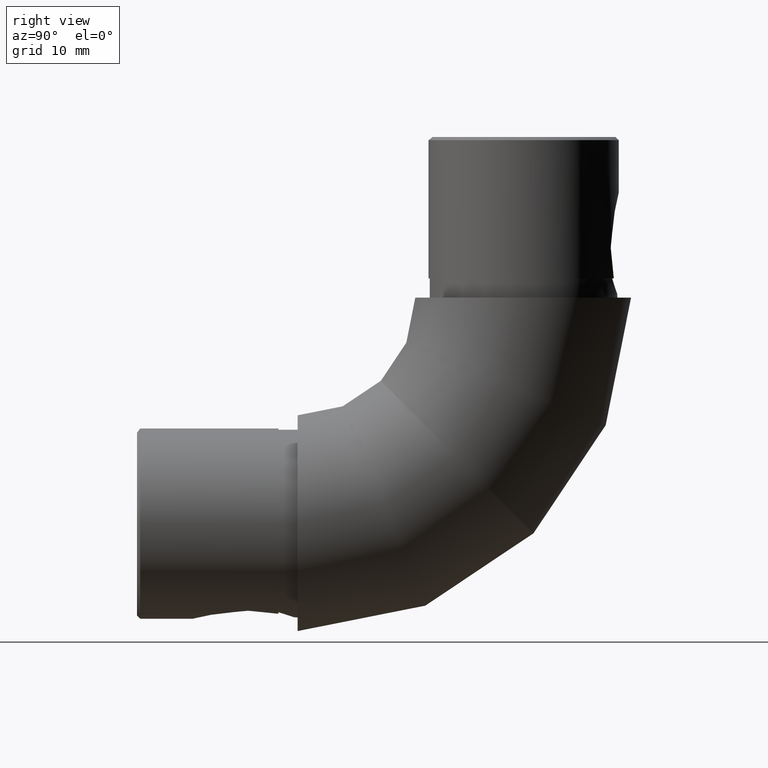
[diagram: clean part render]
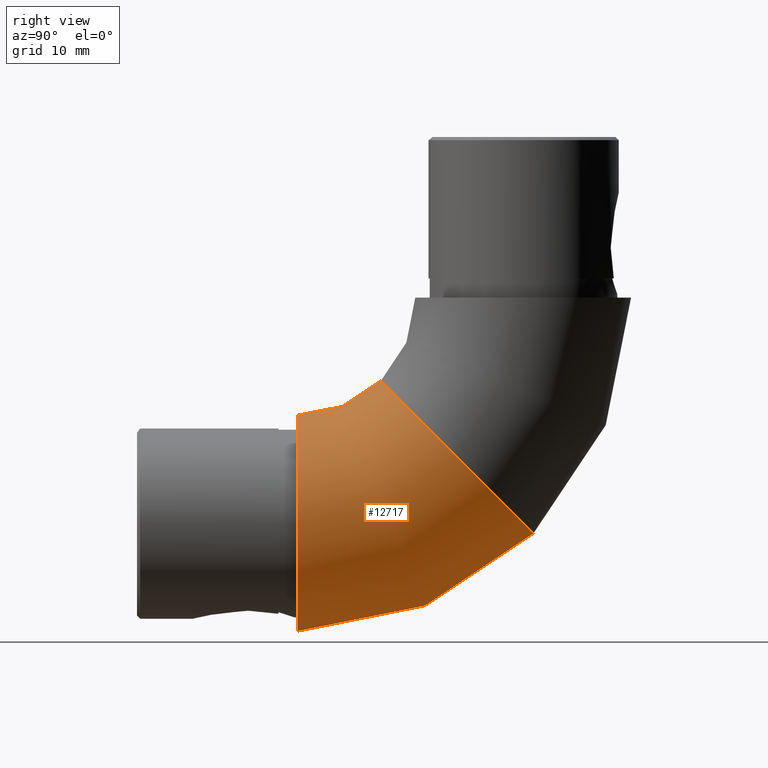
[diagram: same view with one face highlighted and labeled with its STEP entity id]
A machine part, right view. The second image highlights one B-rep face of the part: STEP entity #12717.
In plain terms, the highlighted toroidal blend (fillet) surface has major radius 35.15 mm and minor (blend) radius 16.85 mm.
Its self-contained STEP definition (entity closure, byte-faithful):
#242 = CARTESIAN_POINT ( 'NONE',  ( 0.0000000000000000000, -3.469446951953614200E-015, 35.14999999999999100 ) ) ;
#1121 = ORIENTED_EDGE ( 'NONE', *, *, #7718, .F. ) ;
#1282 = DIRECTION ( 'NONE',  ( 0.0000000000000000000, 1.000000000000000000, 0.0000000000000000000 ) ) ;
#1324 = AXIS2_PLACEMENT_3D ( 'NONE', #242, #10759, #8499 ) ;
#1780 = EDGE_LOOP ( 'NONE', ( #7886 ) ) ;
#6467 = FACE_OUTER_BOUND ( 'NONE', #10330, .T. ) ;
#6594 = VERTEX_POINT ( 'NONE', #9515 ) ;
#6823 = DIRECTION ( 'NONE',  ( 0.0000000000000000000, -0.7071067811865438000, 0.7071067811865512400 ) ) ;
#6875 = CARTESIAN_POINT ( 'NONE',  ( 0.0000000000000000000, 24.85480335870700600, 10.29519664129272400 ) ) ;
#7718 = EDGE_CURVE ( 'NONE', #6594, #6594, #11045, .T. ) ;
#7886 = ORIENTED_EDGE ( 'NONE', *, *, #14124, .T. ) ;
#8499 = DIRECTION ( 'NONE',  ( 0.0000000000000000000, 0.0000000000000000000, 1.000000000000000000 ) ) ;
#9454 = FACE_OUTER_BOUND ( 'NONE', #1780, .T. ) ;
#9515 = CARTESIAN_POINT ( 'NONE',  ( 0.0000000000000000000, 12.94005409571374600, 22.20994590428611200 ) ) ;
#10166 = CIRCLE ( 'NONE', #12238, 16.85000000000000100 ) ;
#10330 = EDGE_LOOP ( 'NONE', ( #1121 ) ) ;
#10759 = DIRECTION ( 'NONE',  ( -1.000000000000000000, -0.0000000000000000000, -0.0000000000000000000 ) ) ;
#10937 = TOROIDAL_SURFACE ( 'NONE', #1324, 35.14999999999998400, 16.85000000000000100 ) ;
#11045 = CIRCLE ( 'NONE', #13768, 16.84999999999999800 ) ;
#12238 = AXIS2_PLACEMENT_3D ( 'NONE', #15322, #1282, #12879 ) ;
#12717 = ADVANCED_FACE ( 'NONE', ( #6467, #9454 ), #10937, .T. ) ;
#12879 = DIRECTION ( 'NONE',  ( 0.0000000000000000000, 0.0000000000000000000, 1.000000000000000000 ) ) ;
#13768 = AXIS2_PLACEMENT_3D ( 'NONE', #6875, #14101, #6823 ) ;
#14101 = DIRECTION ( 'NONE',  ( 0.0000000000000000000, 0.7071067811865513500, 0.7071067811865438000 ) ) ;
#14124 = EDGE_CURVE ( 'NONE', #15160, #15160, #10166, .T. ) ;
#14134 = CARTESIAN_POINT ( 'NONE',  ( 0.0000000000000000000, 0.0000000000000000000, 16.85000000000000100 ) ) ;
#15160 = VERTEX_POINT ( 'NONE', #14134 ) ;
#15322 = CARTESIAN_POINT ( 'NONE',  ( 0.0000000000000000000, 0.0000000000000000000, 0.0000000000000000000 ) ) ;